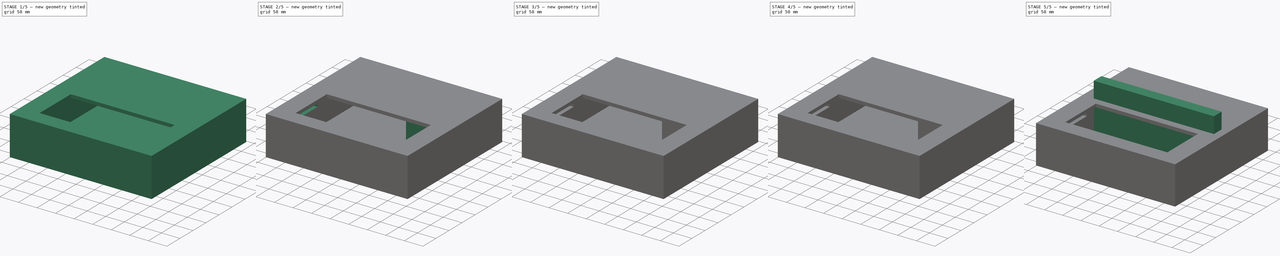
[diagram: build sequence overview — one tinted view per stage of 5, left to right]
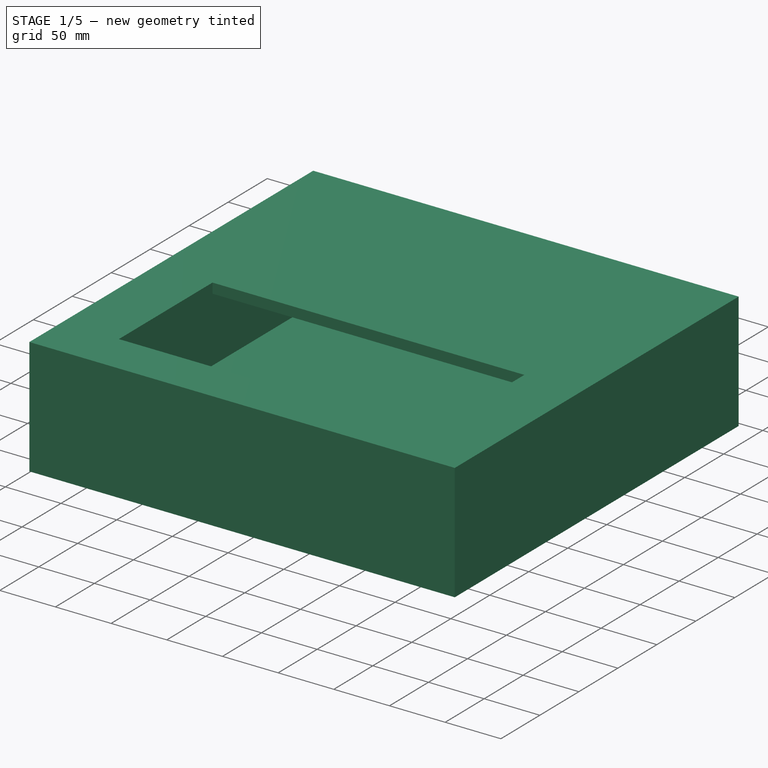
[diagram: stage 1 of 5 — iso view after this stage's code; geometry added in this stage tinted green]
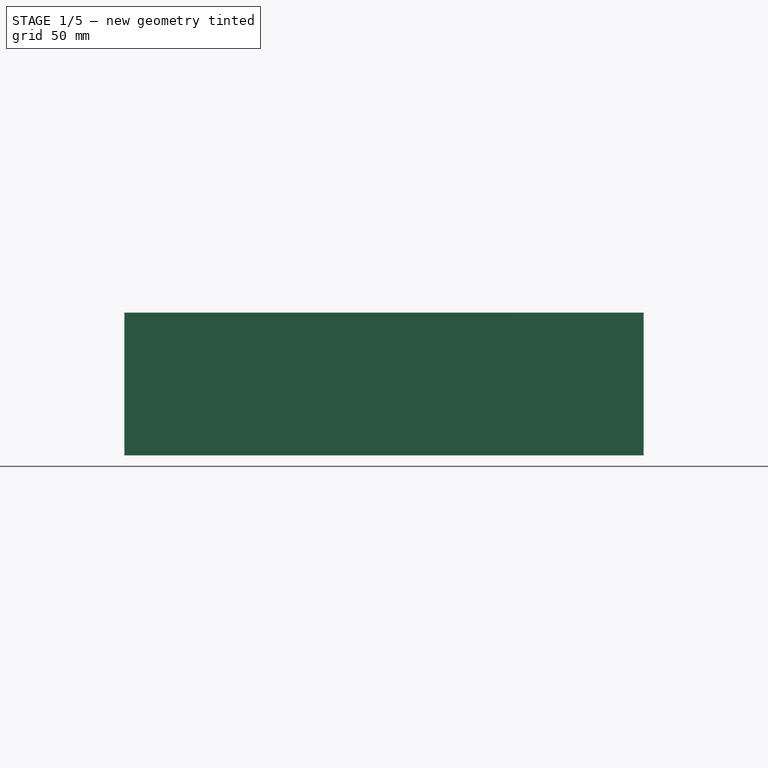
[diagram: stage 1 of 5 — front view after this stage's code; geometry added in this stage tinted green]
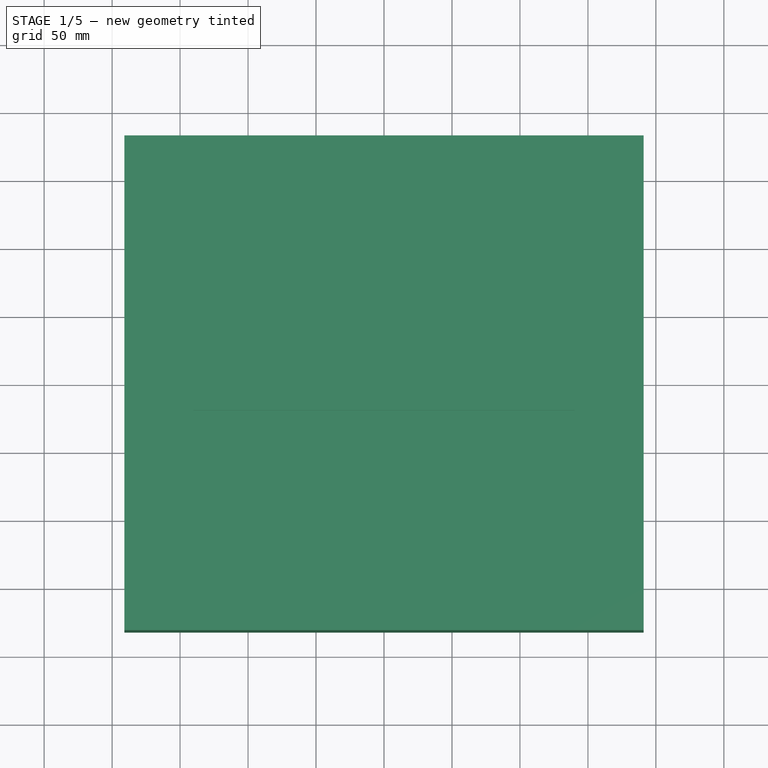
[diagram: stage 1 of 5 — top view after this stage's code; geometry added in this stage tinted green]
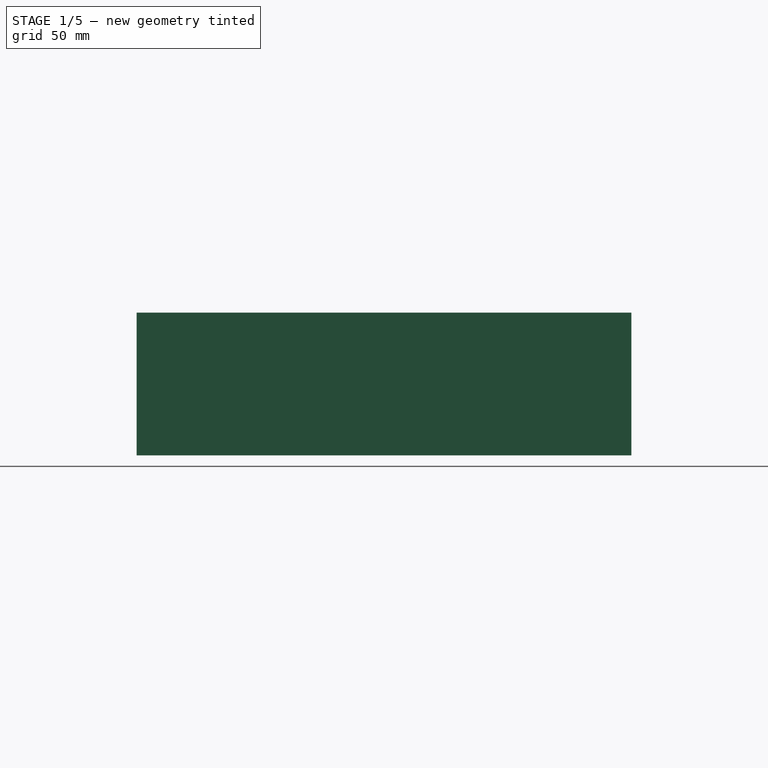
[diagram: stage 1 of 5 — right view after this stage's code; geometry added in this stage tinted green]
FCSTD DOCUMENT  (FreeCAD 0.19R24291 (Git))
Label: Silverstone_RVZ03-mitx-case
License: All rights reserved
LicenseURL: http://en.wikipedia.org/wiki/All_rights_reserved
objects: PartDesign::SubtractivePrism×9, PartDesign::AdditiveBox×3, PartDesign::SubtractiveBox×3, PartDesign::Body×2, Sketcher::SketchObject×1
note: 33 computed .brp shape members not serialized (recipe doc carries the construction recipe); baked Part::Feature solids carry a one-line shape summary decoded from their .brp

FEATURE [Sketcher::SketchObject] Sketch
  FullyConstrained = false
  MapMode = 5
  Support = -> [XY_Plane]
  sketch-geometry (4):
    g0: LineSegment StartX=-191 StartY=191 StartZ=0 EndX=191 EndY=191 EndZ=0
    g1: LineSegment StartX=191 StartY=191 StartZ=0 EndX=191 EndY=-182 EndZ=0
    g2: LineSegment StartX=191 StartY=-182 StartZ=0 EndX=-191 EndY=-182 EndZ=0
    g3: LineSegment StartX=-191 StartY=-182 StartZ=0 EndX=-191 EndY=191 EndZ=0
  constraints (8):
    c: Coincident(g0,g1)
    c: Coincident(g1,g2)
    c: Coincident(g2,g3)
    c: Coincident(g3,g0)
    c: Horizontal(g0)
    c: Horizontal(g2)
    c: Vertical(g1)
    c: Vertical(g3)
FEATURE [PartDesign::AdditiveBox] Box
  AttacherType = Attacher::AttachEngine3D
  AttachmentOffset = pos=(-191,-182,0) rot=(0,0,1;0rad)
  Height = 105
  Length = 382
  MapMode = 5
  Placement = pos=(-191,-182,0) rot=(0,0,1;0rad)
  Support = -> [XY_Plane]
  Width = 364
FEATURE [PartDesign::SubtractiveBox] Box001
  AttacherType = Attacher::AttachEngine3D
  AttachmentOffset = pos=(-179,-175,6) rot=(0,0,1;0rad)
  BaseFeature = -> Box
  Height = 90
  Length = 360
  MapMode = 5
  Placement = pos=(-179,-175,6) rot=(0,0,1;0rad)
  Support = -> [XY_Plane]
  Width = 350
FEATURE [PartDesign::Body] Body001  label="Max-card"
  Group = -> [Box002]
  Origin = -> Origin001
  Tip = -> Box002
FEATURE [PartDesign::SubtractiveBox] Box003  label="Card-vents"
  AttacherType = Attacher::AttachEngine3D
  AttachmentOffset = pos=(-140,-140,90) rot=(0,0,1;0rad)
  BaseFeature = -> Box001
  Height = 50
  Length = 280
  MapMode = 5
  Placement = pos=(-140,-140,90) rot=(0,0,1;0rad)
  Support = -> [XY_Plane]
  Width = 120
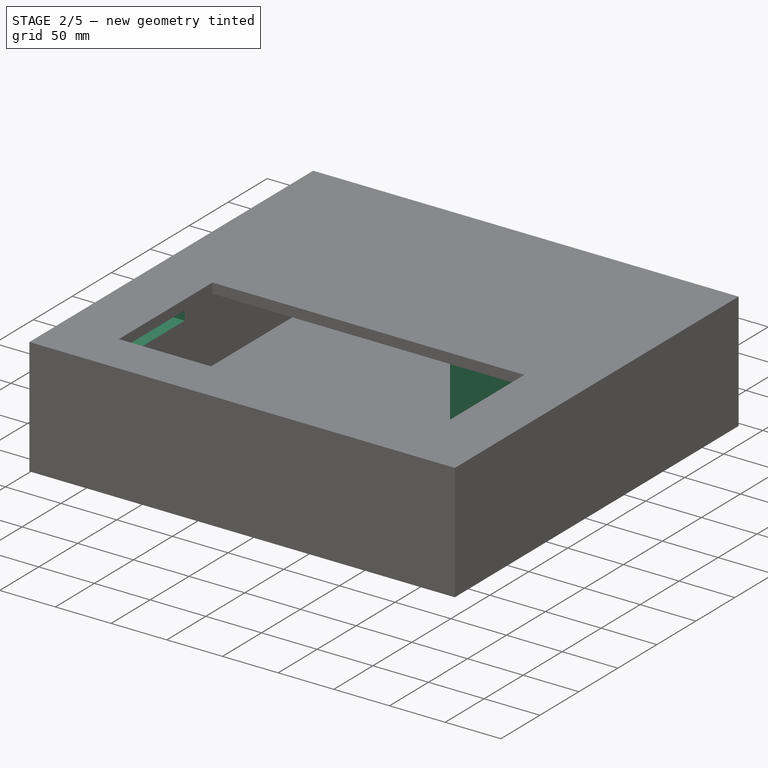
[diagram: stage 2 of 5 — iso view after this stage's code; geometry added in this stage tinted green]
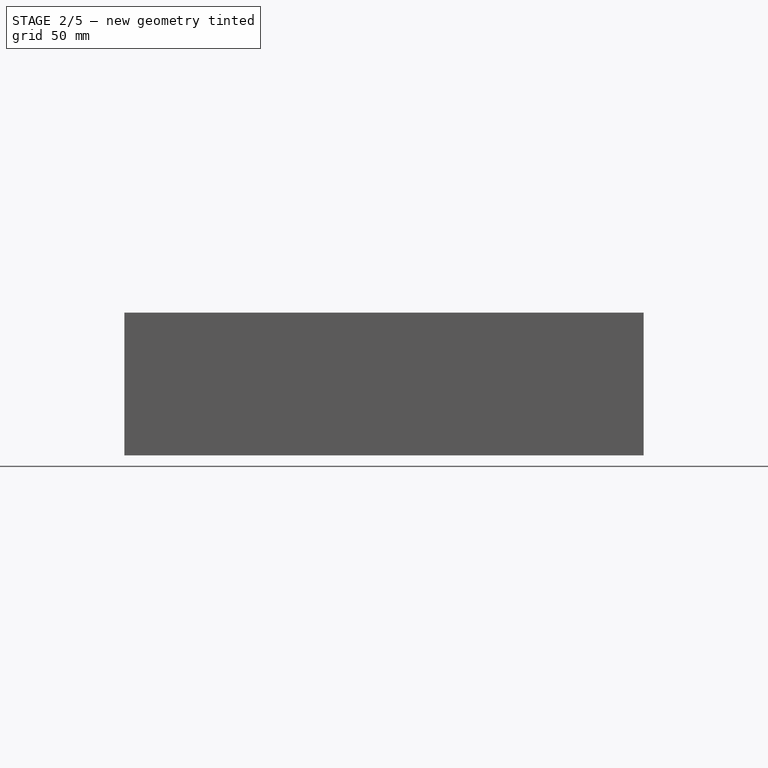
[diagram: stage 2 of 5 — front view after this stage's code; geometry added in this stage tinted green]
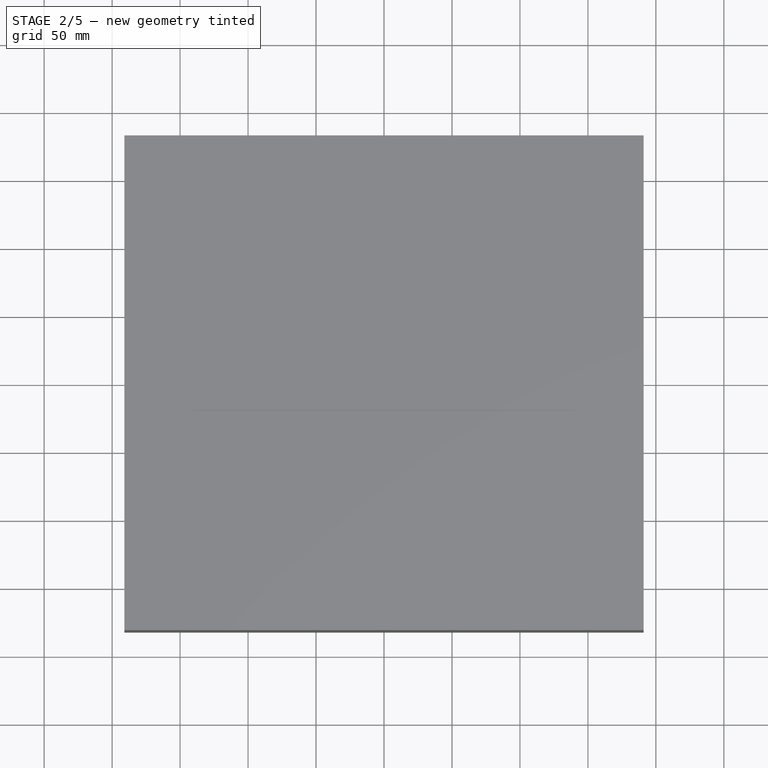
[diagram: stage 2 of 5 — top view after this stage's code; geometry added in this stage tinted green]
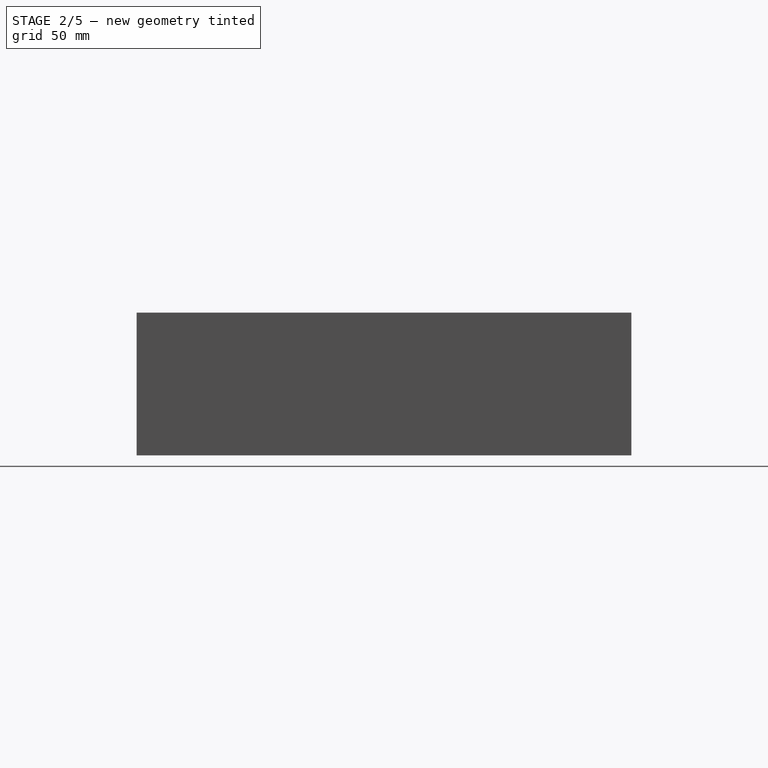
[diagram: stage 2 of 5 — right view after this stage's code; geometry added in this stage tinted green]
FEATURE [PartDesign::AdditiveBox] Box004  label="PSU"
  AttacherType = Attacher::AttachEngine3D
  AttachmentOffset = pos=(20,56,6) rot=(0,0,1;0rad)
  BaseFeature = -> Box003
  Height = 90
  Length = 140
  MapMode = 5
  Placement = pos=(20,56,6) rot=(0,0,1;0rad)
  Support = -> [XY_Plane]
  Width = 100
FEATURE [PartDesign::SubtractiveBox] Box005  label="rear-vent"
  AttacherType = Attacher::AttachEngine3D
  AttachmentOffset = pos=(-193,-160,56) rot=(0,0,1;0rad)
  BaseFeature = -> Box004
  Height = 40
  Length = 30
  MapMode = 5
  Placement = pos=(-193,-160,56) rot=(0,0,1;0rad)
  Support = -> [XY_Plane]
  Width = 160
FEATURE [PartDesign::SubtractivePrism] Prism
  AttacherType = Attacher::AttachEngine3D
  AttachmentOffset = pos=(100,100,0) rot=(0,0,1;0rad)
  BaseFeature = -> Box005
  Circumradius = 2
  FirstAngle = 0
  Height = 10
  MapMode = 5
  Placement = pos=(100,100,0) rot=(0,0,1;0rad)
  Polygon = 6
  SecondAngle = 0
  Support = -> [XY_Plane]
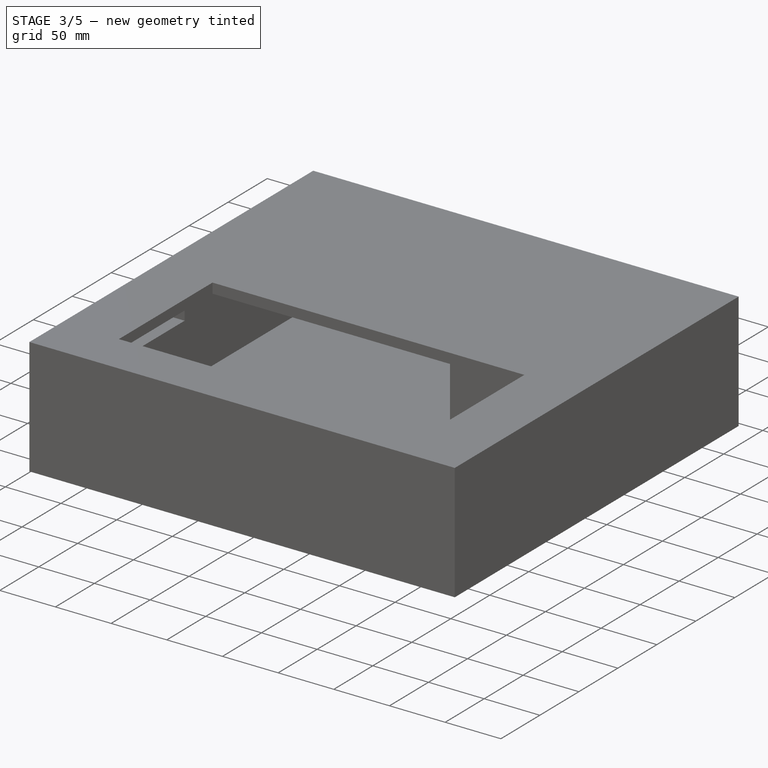
[diagram: stage 3 of 5 — iso view after this stage's code; geometry added in this stage tinted green]
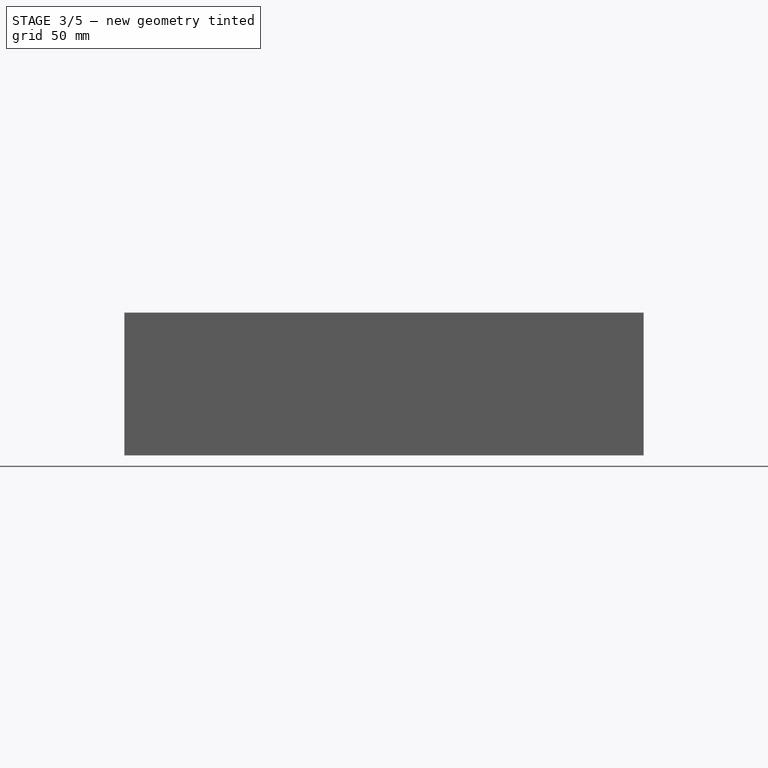
[diagram: stage 3 of 5 — front view after this stage's code; geometry added in this stage tinted green]
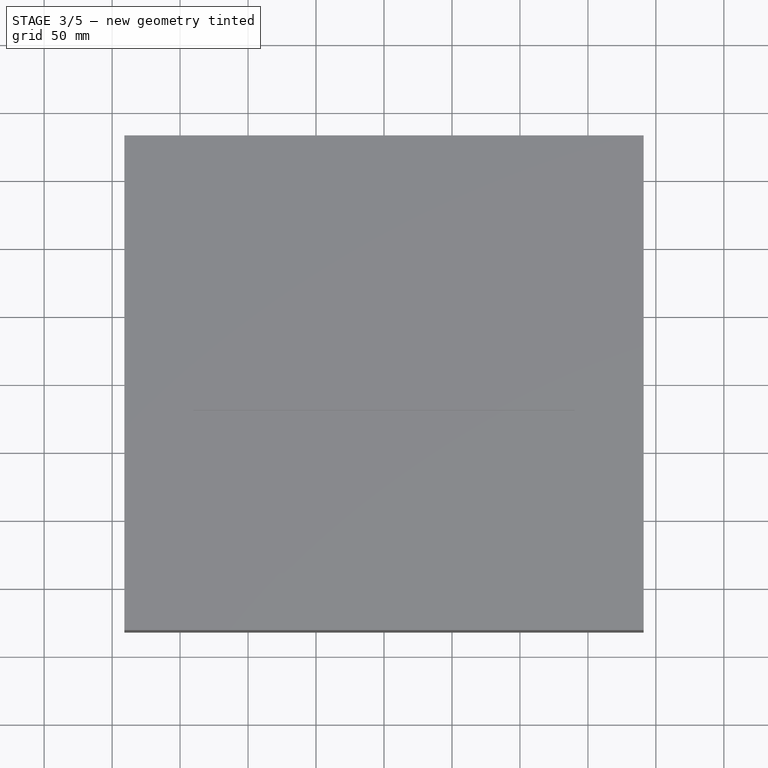
[diagram: stage 3 of 5 — top view after this stage's code; geometry added in this stage tinted green]
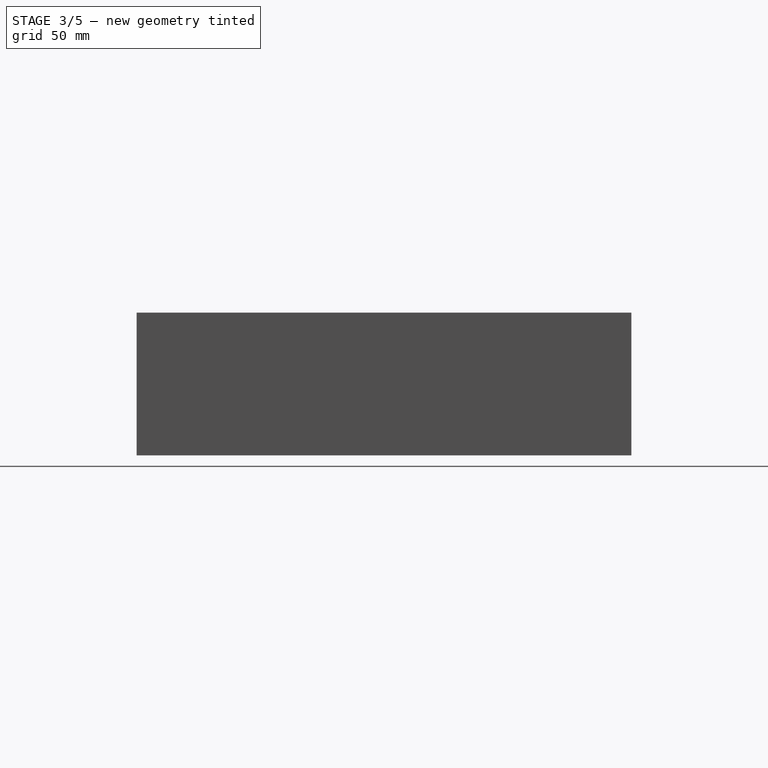
[diagram: stage 3 of 5 — right view after this stage's code; geometry added in this stage tinted green]
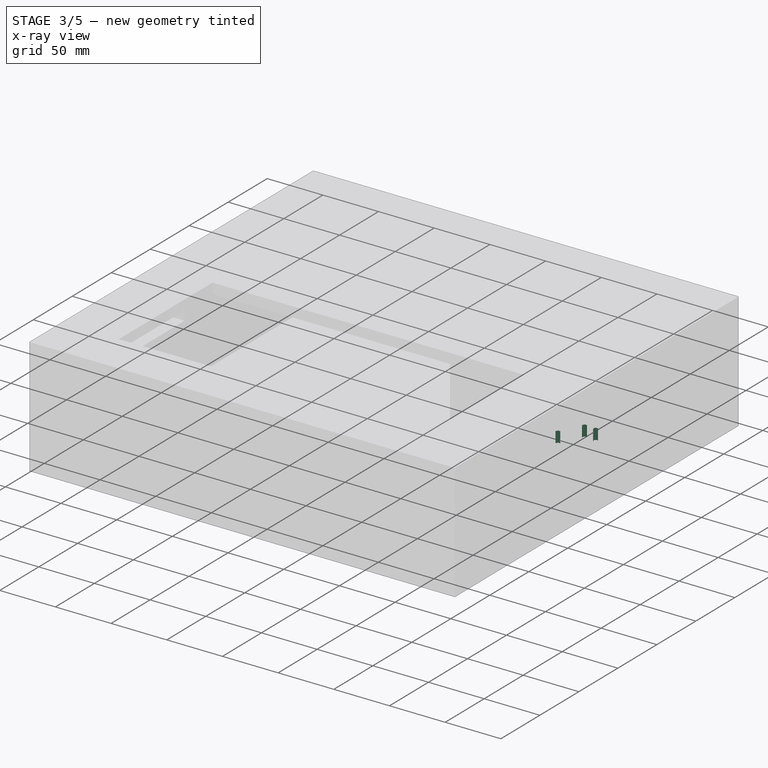
[diagram: stage 3 of 5 — x-ray composite at the iso view; earlier geometry ghosted, this stage's added geometry solid]
FEATURE [PartDesign::SubtractivePrism] Prism001
  AttacherType = Attacher::AttachEngine3D
  AttachmentOffset = pos=(110,100,0) rot=(0,0,1;0rad)
  BaseFeature = -> Prism
  Circumradius = 2
  FirstAngle = 0
  Height = 10
  MapMode = 5
  Placement = pos=(110,100,0) rot=(0,0,1;0rad)
  Polygon = 6
  SecondAngle = 0
  Support = -> [XY_Plane]
FEATURE [PartDesign::SubtractivePrism] Prism002
  AttacherType = Attacher::AttachEngine3D
  AttachmentOffset = pos=(120,100,0) rot=(0,0,1;0rad)
  BaseFeature = -> Prism001
  Circumradius = 2
  FirstAngle = 0
  Height = 10
  MapMode = 5
  Placement = pos=(120,100,0) rot=(0,0,1;0rad)
  Polygon = 6
  SecondAngle = 0
  Support = -> [XY_Plane]
FEATURE [PartDesign::SubtractivePrism] Prism003
  AttacherType = Attacher::AttachEngine3D
  AttachmentOffset = pos=(100,80,0) rot=(0,0,1;0rad)
  BaseFeature = -> Prism002
  Circumradius = 2
  FirstAngle = 0
  Height = 10
  MapMode = 5
  Placement = pos=(100,80,0) rot=(0,0,1;0rad)
  Polygon = 6
  SecondAngle = 0
  Support = -> [XY_Plane]
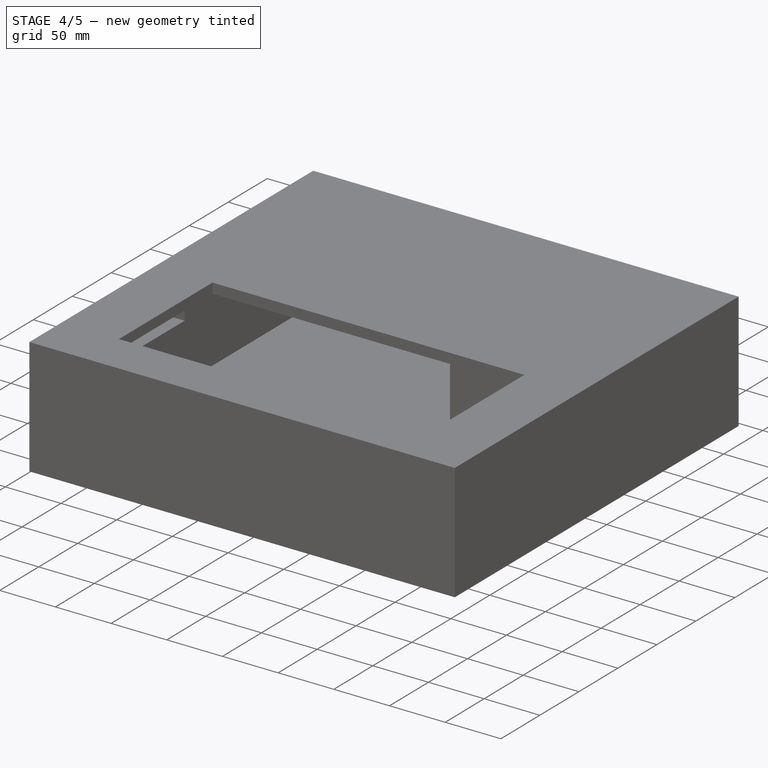
[diagram: stage 4 of 5 — iso view after this stage's code; geometry added in this stage tinted green]
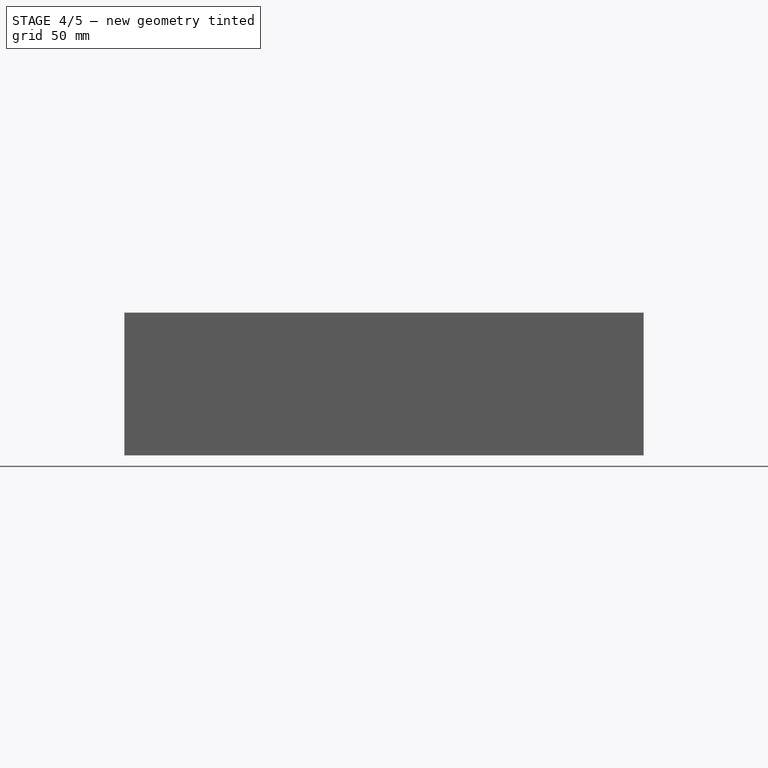
[diagram: stage 4 of 5 — front view after this stage's code; geometry added in this stage tinted green]
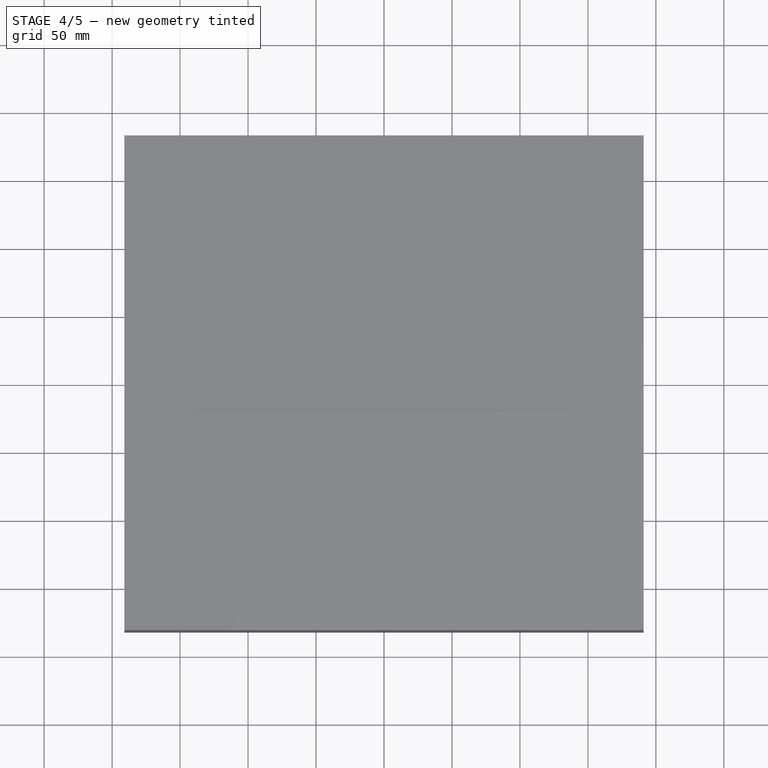
[diagram: stage 4 of 5 — top view after this stage's code; geometry added in this stage tinted green]
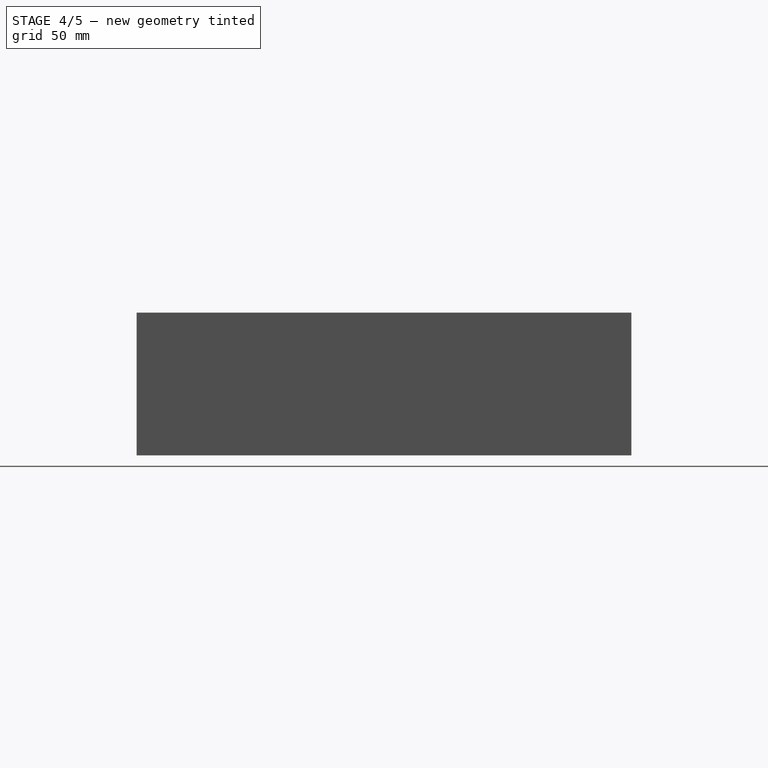
[diagram: stage 4 of 5 — right view after this stage's code; geometry added in this stage tinted green]
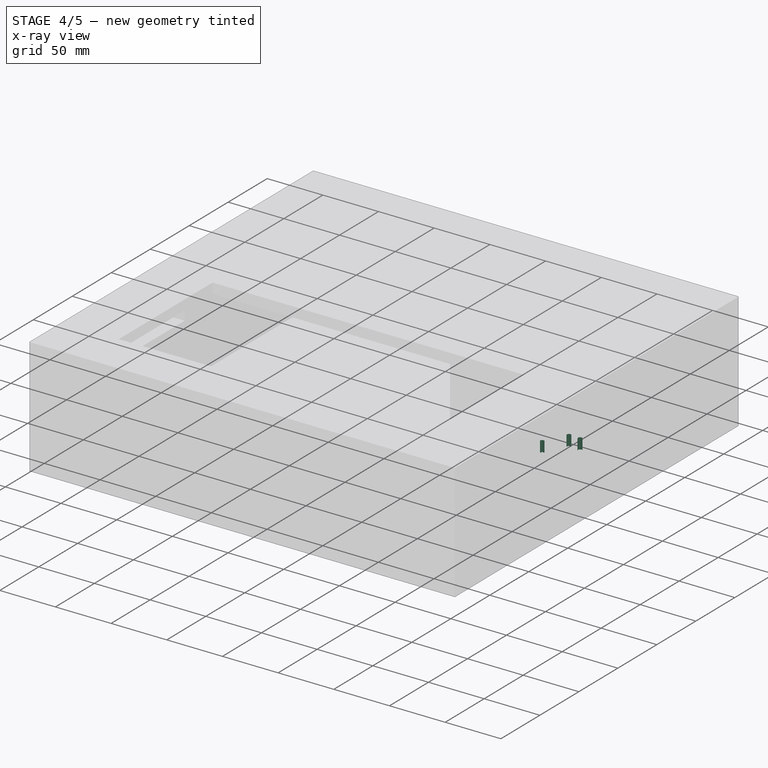
[diagram: stage 4 of 5 — x-ray composite at the iso view; earlier geometry ghosted, this stage's added geometry solid]
FEATURE [PartDesign::SubtractivePrism] Prism004
  AttacherType = Attacher::AttachEngine3D
  AttachmentOffset = pos=(110,80,0) rot=(0,0,1;0rad)
  BaseFeature = -> Prism003
  Circumradius = 2
  FirstAngle = 0
  Height = 10
  MapMode = 5
  Placement = pos=(110,80,0) rot=(0,0,1;0rad)
  Polygon = 6
  SecondAngle = 0
  Support = -> [XY_Plane]
FEATURE [PartDesign::SubtractivePrism] Prism005
  AttacherType = Attacher::AttachEngine3D
  AttachmentOffset = pos=(120,80,0) rot=(0,0,1;0rad)
  BaseFeature = -> Prism004
  Circumradius = 2
  FirstAngle = 0
  Height = 10
  MapMode = 5
  Placement = pos=(120,80,0) rot=(0,0,1;0rad)
  Polygon = 6
  SecondAngle = 0
  Support = -> [XY_Plane]
FEATURE [PartDesign::SubtractivePrism] Prism006
  AttacherType = Attacher::AttachEngine3D
  AttachmentOffset = pos=(100,60,0) rot=(0,0,1;0rad)
  BaseFeature = -> Prism005
  Circumradius = 2
  FirstAngle = 0
  Height = 10
  MapMode = 5
  Placement = pos=(100,60,0) rot=(0,0,1;0rad)
  Polygon = 6
  SecondAngle = 0
  Support = -> [XY_Plane]
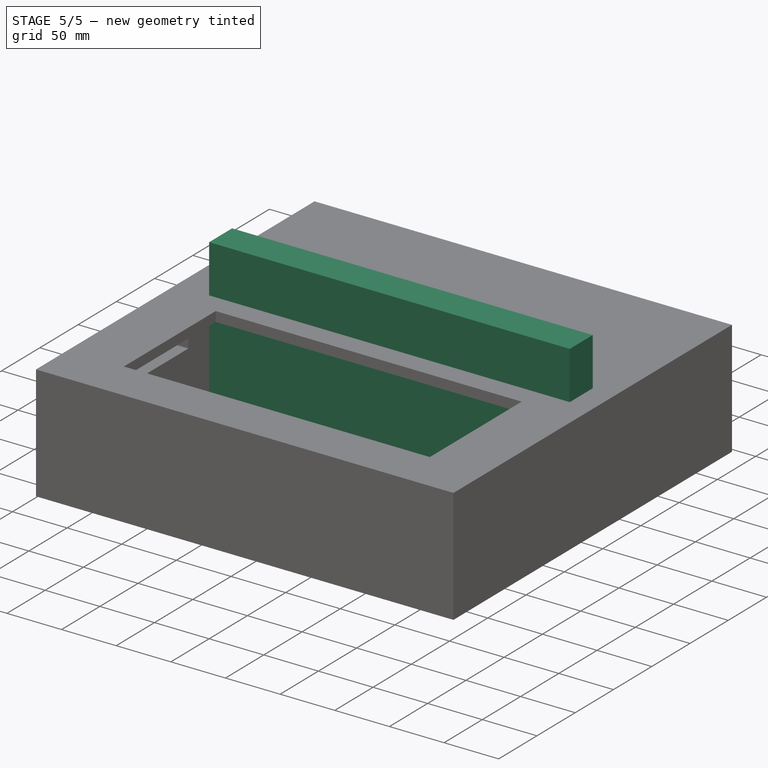
[diagram: stage 5 of 5 — iso view after this stage's code; geometry added in this stage tinted green]
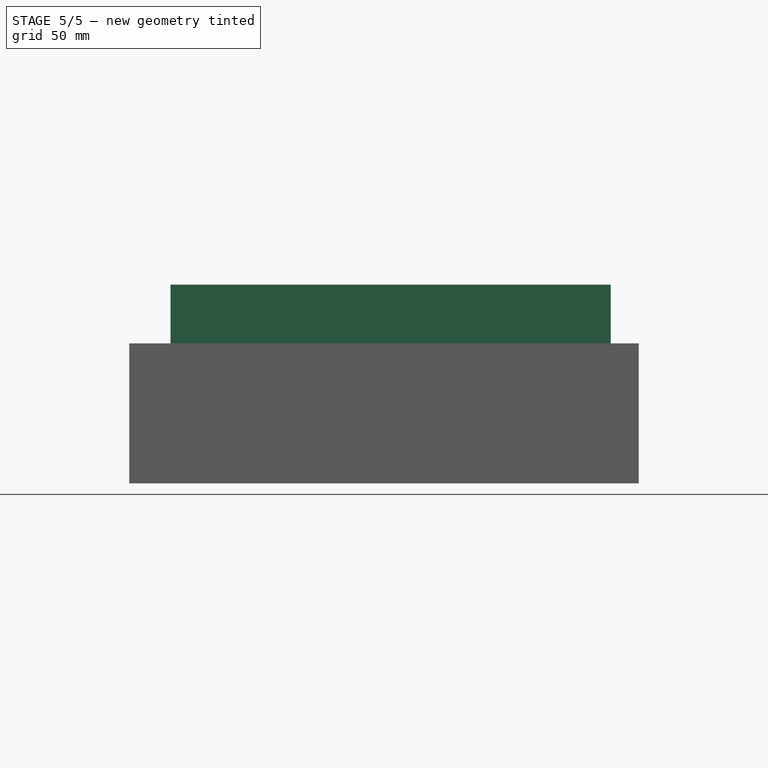
[diagram: stage 5 of 5 — front view after this stage's code; geometry added in this stage tinted green]
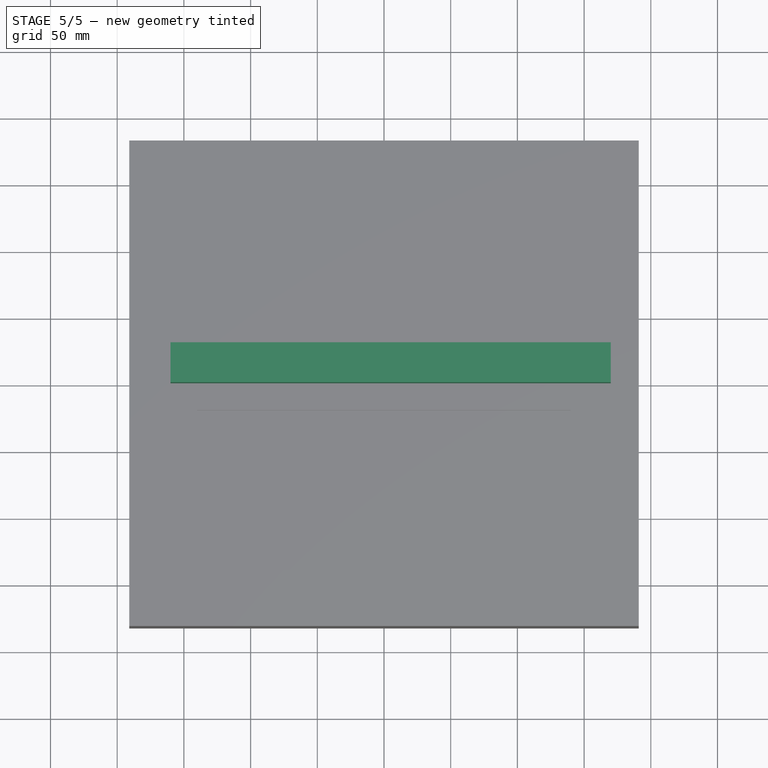
[diagram: stage 5 of 5 — top view after this stage's code; geometry added in this stage tinted green]
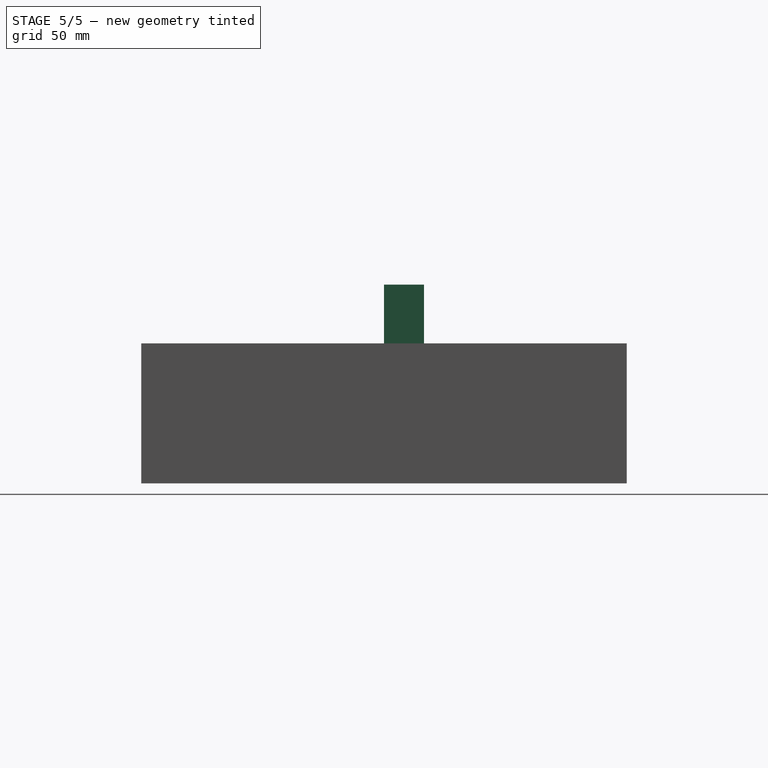
[diagram: stage 5 of 5 — right view after this stage's code; geometry added in this stage tinted green]
FEATURE [PartDesign::AdditiveBox] Box002
  AttacherType = Attacher::AttachEngine3D
  AttachmentOffset = pos=(-160,0,0) rot=(0,0,1;0rad)
  Height = 149
  Length = 330
  MapMode = 5
  Placement = pos=(-160,0,0) rot=(0,0,1;0rad)
  Support = -> [XY_Plane001]
  Width = 30
FEATURE [PartDesign::SubtractivePrism] Prism007
  AttacherType = Attacher::AttachEngine3D
  AttachmentOffset = pos=(110,60,0) rot=(0,0,1;0rad)
  BaseFeature = -> Prism006
  Circumradius = 2
  FirstAngle = 0
  Height = 10
  MapMode = 5
  Placement = pos=(110,60,0) rot=(0,0,1;0rad)
  Polygon = 6
  SecondAngle = 0
  Support = -> [XY_Plane]
FEATURE [PartDesign::SubtractivePrism] Prism008
  AttacherType = Attacher::AttachEngine3D
  AttachmentOffset = pos=(120,60,0) rot=(0,0,1;0rad)
  BaseFeature = -> Prism007
  Circumradius = 2
  FirstAngle = 0
  Height = 10
  MapMode = 5
  Placement = pos=(120,60,0) rot=(0,0,1;0rad)
  Polygon = 6
  SecondAngle = 0
  Support = -> [XY_Plane]
FEATURE [PartDesign::Body] Body
  Group = -> [Sketch,Box,Box001,Box003,Box004,Box005,Prism,Prism001,Prism002,Prism003,Prism004,Prism005,Prism006,Prism007,Prism008]
  Origin = -> Origin
  Tip = -> Prism008
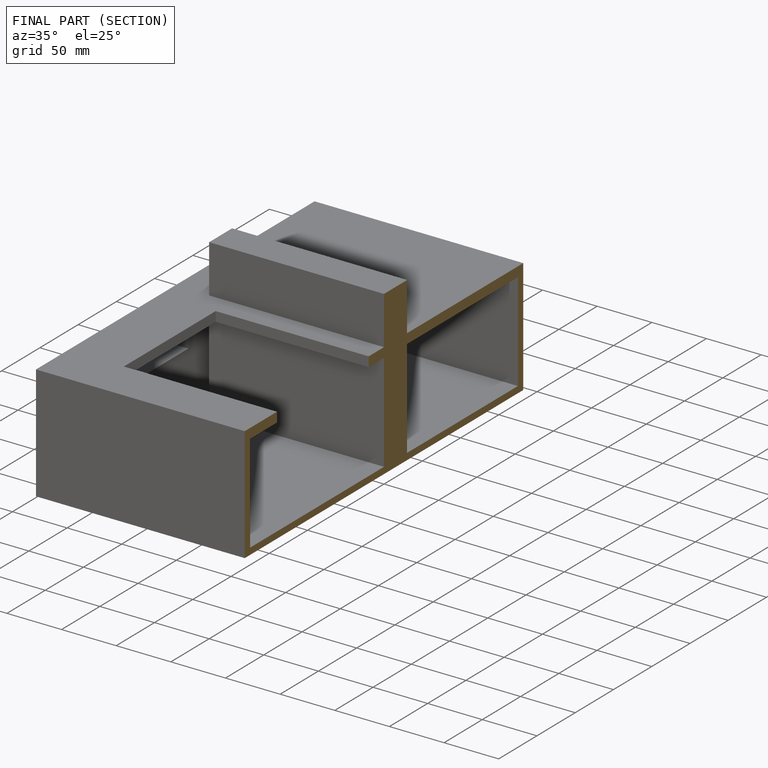
[diagram: finished part — half-section view (interior)]
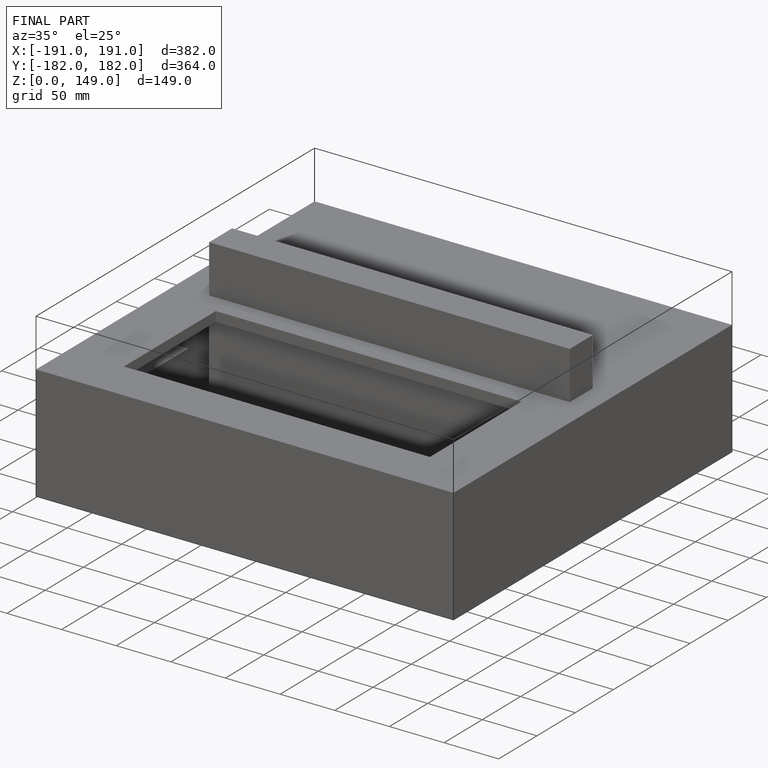
[diagram: finished part — iso view with bounding-box wireframe]
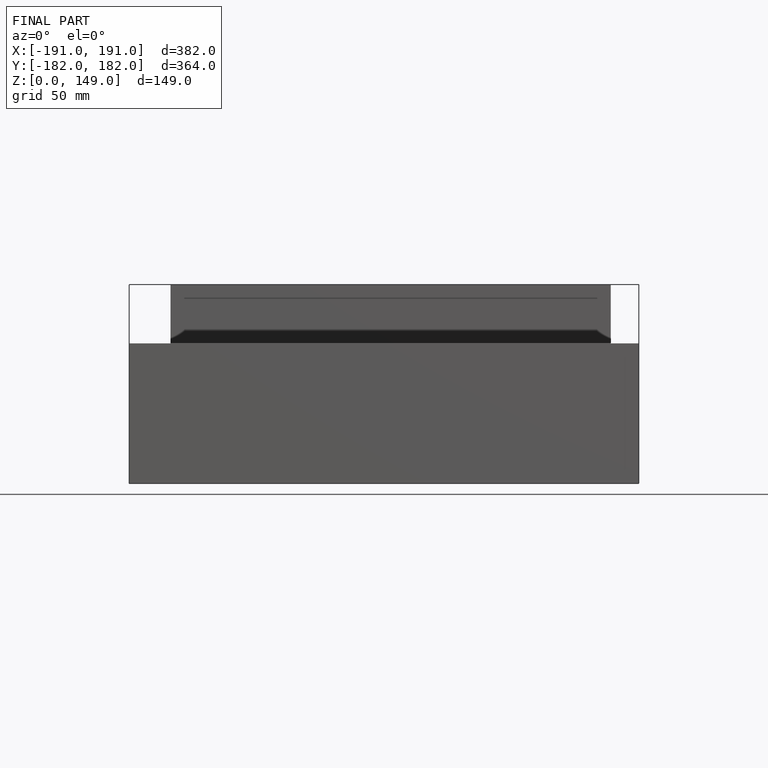
[diagram: finished part — front view with bounding-box wireframe]
